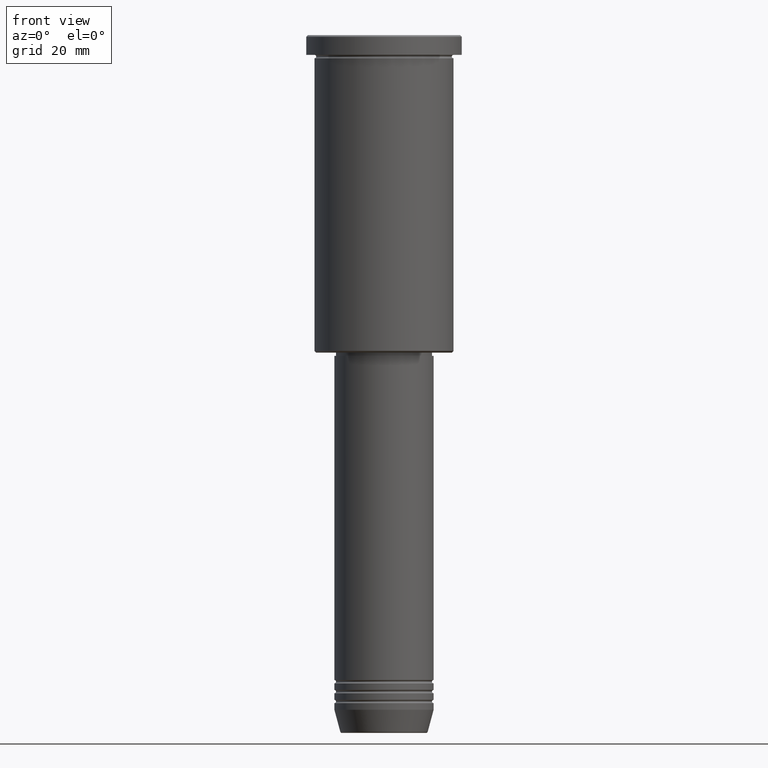
[diagram: clean part render]
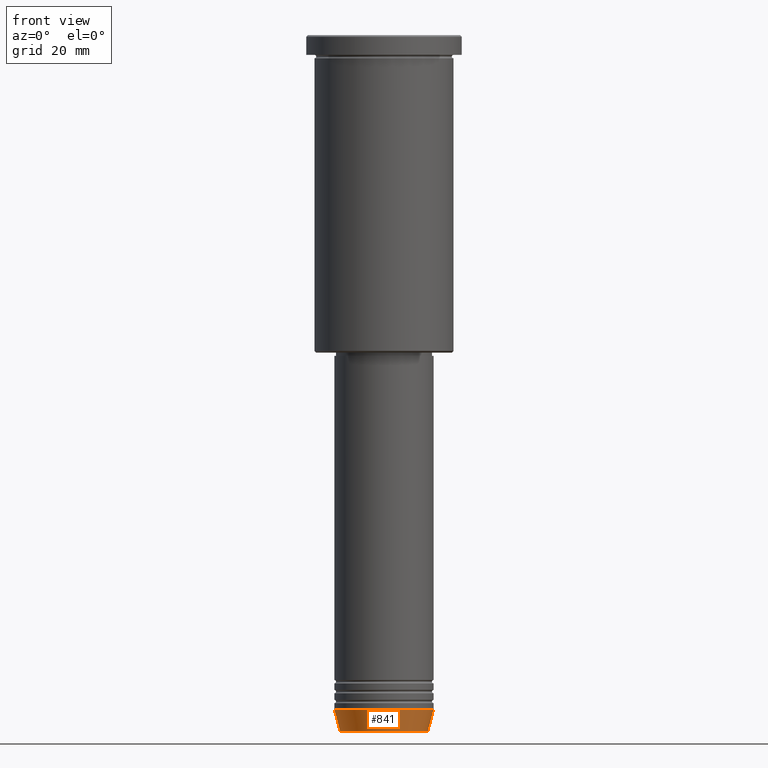
[diagram: same view with one face highlighted and labeled with its STEP entity id]
A machine part, front view. The second image highlights one B-rep face of the part: STEP entity #841.
In plain terms, the highlighted conical surface has half-angle 15 deg.
Its self-contained STEP definition (entity closure, byte-faithful):
#61 = ORIENTED_EDGE ( 'NONE', *, *, #574, .F. ) ;
#71 = VERTEX_POINT ( 'NONE', #646 ) ;
#91 = CARTESIAN_POINT ( 'NONE',  ( 15.00000000000000000, 0.000000000000000000, -204.0000000000000284 ) ) ;
#96 = AXIS2_PLACEMENT_3D ( 'NONE', #256, #620, #610 ) ;
#175 = CARTESIAN_POINT ( 'NONE',  ( 0.000000000000000000, 0.000000000000000000, -210.6294095225512706 ) ) ;
#194 = VECTOR ( 'NONE', #639, 1000.000000000000000 ) ;
#207 = DIRECTION ( 'NONE',  ( 1.000000000000000000, 0.000000000000000000, 0.000000000000000000 ) ) ;
#209 = EDGE_CURVE ( 'NONE', #71, #1174, #1127, .T. ) ;
#220 = ORIENTED_EDGE ( 'NONE', *, *, #750, .T. ) ;
#256 = CARTESIAN_POINT ( 'NONE',  ( 0.000000000000000000, 0.000000000000000000, -204.0000000000000284 ) ) ;
#270 = CARTESIAN_POINT ( 'NONE',  ( 13.22365507213720015, 0.000000000000000000, -210.6294095225512706 ) ) ;
#406 = DIRECTION ( 'NONE',  ( -0.2588190451025209060, 3.169619151431766790E-17, 0.9659258262890682012 ) ) ;
#409 = CARTESIAN_POINT ( 'NONE',  ( -15.00000000000000000, 1.836970198721029589E-15, -204.0000000000000284 ) ) ;
#423 = CIRCLE ( 'NONE', #988, 15.00000000000000000 ) ;
#472 = LINE ( 'NONE', #91, #194 ) ;
#477 = DIRECTION ( 'NONE',  ( -0.000000000000000000, -0.000000000000000000, 1.000000000000000000 ) ) ;
#485 = CIRCLE ( 'NONE', #1141, 13.22365507213720015 ) ;
#499 = CARTESIAN_POINT ( 'NONE',  ( -15.00000000000000000, 1.836970198721029589E-15, -204.0000000000000284 ) ) ;
#503 = FACE_OUTER_BOUND ( 'NONE', #880, .T. ) ;
#521 = ORIENTED_EDGE ( 'NONE', *, *, #604, .T. ) ;
#574 = EDGE_CURVE ( 'NONE', #1174, #1128, #423, .T. ) ;
#604 = EDGE_CURVE ( 'NONE', #71, #1032, #485, .T. ) ;
#610 = DIRECTION ( 'NONE',  ( 1.000000000000000000, 0.000000000000000000, 0.000000000000000000 ) ) ;
#620 = DIRECTION ( 'NONE',  ( -0.000000000000000000, -0.000000000000000000, 1.000000000000000000 ) ) ;
#630 = DIRECTION ( 'NONE',  ( -0.000000000000000000, -0.000000000000000000, 1.000000000000000000 ) ) ;
#639 = DIRECTION ( 'NONE',  ( 0.2588190451025209060, 0.000000000000000000, 0.9659258262890682012 ) ) ;
#646 = CARTESIAN_POINT ( 'NONE',  ( -13.22365507213720015, 1.728200442216589175E-15, -210.6294095225512706 ) ) ;
#675 = CONICAL_SURFACE ( 'NONE', #96, 15.00000000000000000, 0.2617993877991495744 ) ;
#684 = CARTESIAN_POINT ( 'NONE',  ( 0.000000000000000000, 0.000000000000000000, -204.0000000000000284 ) ) ;
#750 = EDGE_CURVE ( 'NONE', #1032, #1128, #472, .T. ) ;
#841 = ADVANCED_FACE ( 'NONE', ( #503 ), #675, .T. ) ;
#880 = EDGE_LOOP ( 'NONE', ( #1066, #521, #220, #61 ) ) ;
#988 = AXIS2_PLACEMENT_3D ( 'NONE', #684, #477, #207 ) ;
#1032 = VERTEX_POINT ( 'NONE', #270 ) ;
#1045 = CARTESIAN_POINT ( 'NONE',  ( 15.00000000000000000, 0.000000000000000000, -204.0000000000000284 ) ) ;
#1066 = ORIENTED_EDGE ( 'NONE', *, *, #209, .F. ) ;
#1106 = VECTOR ( 'NONE', #406, 1000.000000000000000 ) ;
#1127 = LINE ( 'NONE', #499, #1106 ) ;
#1128 = VERTEX_POINT ( 'NONE', #1045 ) ;
#1141 = AXIS2_PLACEMENT_3D ( 'NONE', #175, #630, #1178 ) ;
#1174 = VERTEX_POINT ( 'NONE', #409 ) ;
#1178 = DIRECTION ( 'NONE',  ( 1.000000000000000000, 0.000000000000000000, 0.000000000000000000 ) ) ;